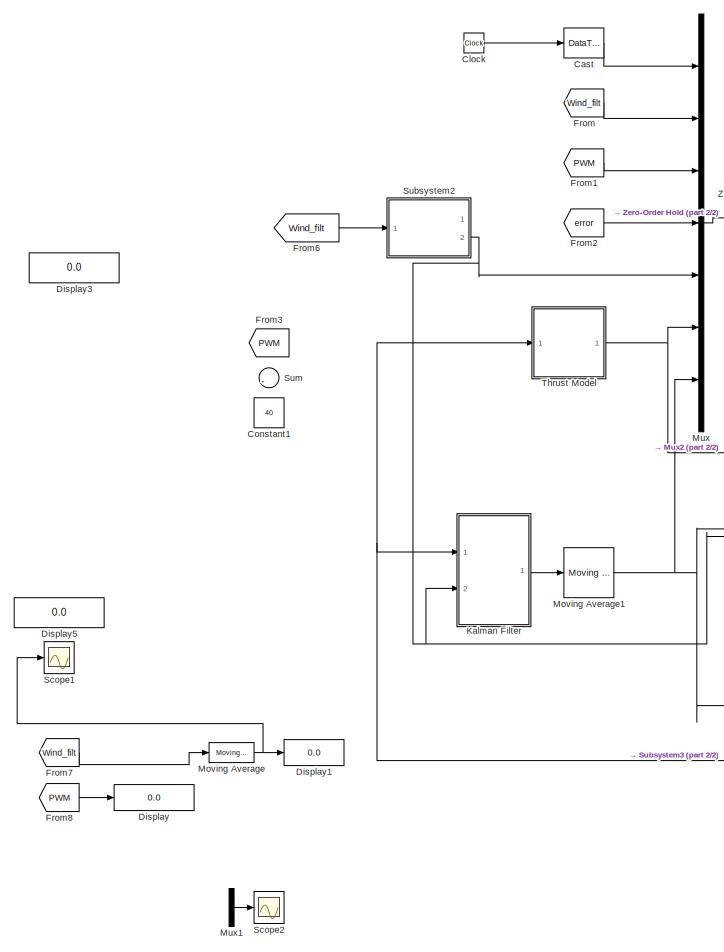
[diagram: root canvas - part 1/2, left side, full height]
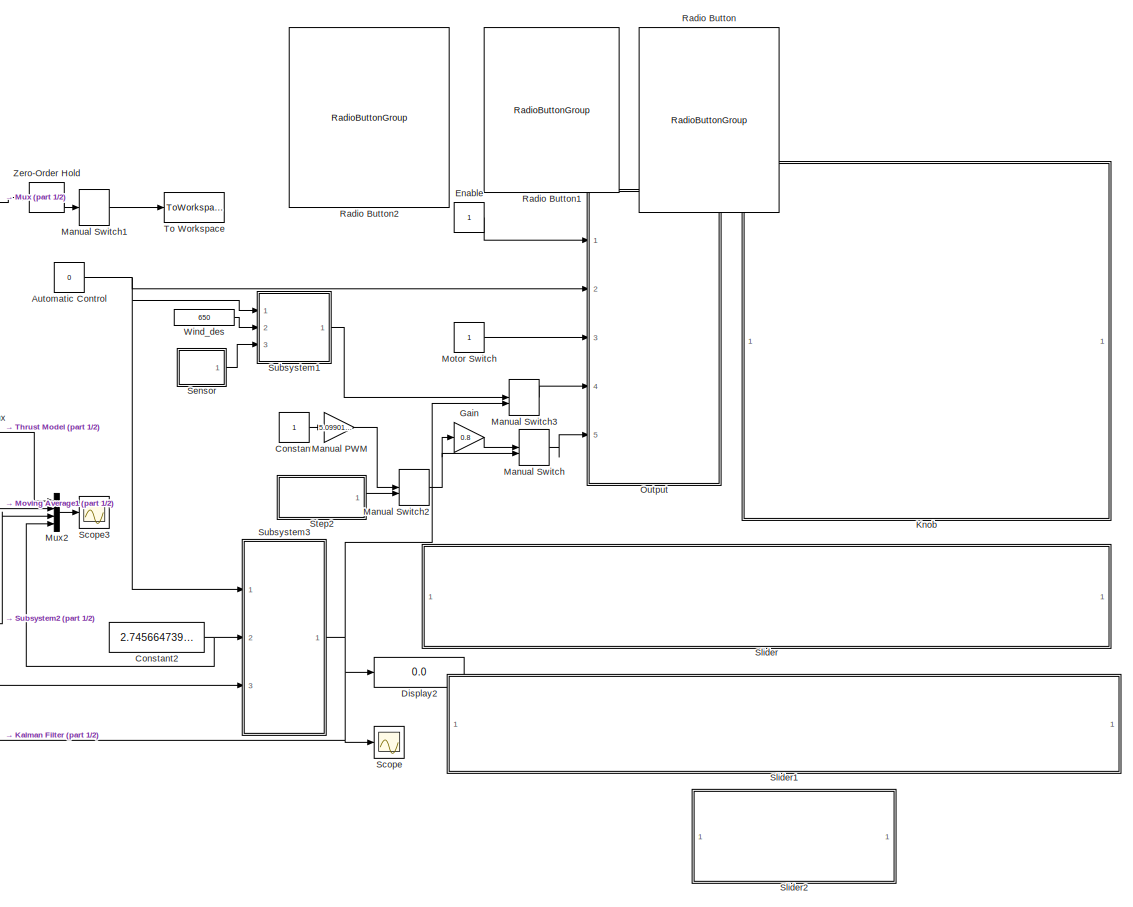
[diagram: root canvas - part 2/2, right side, full height]
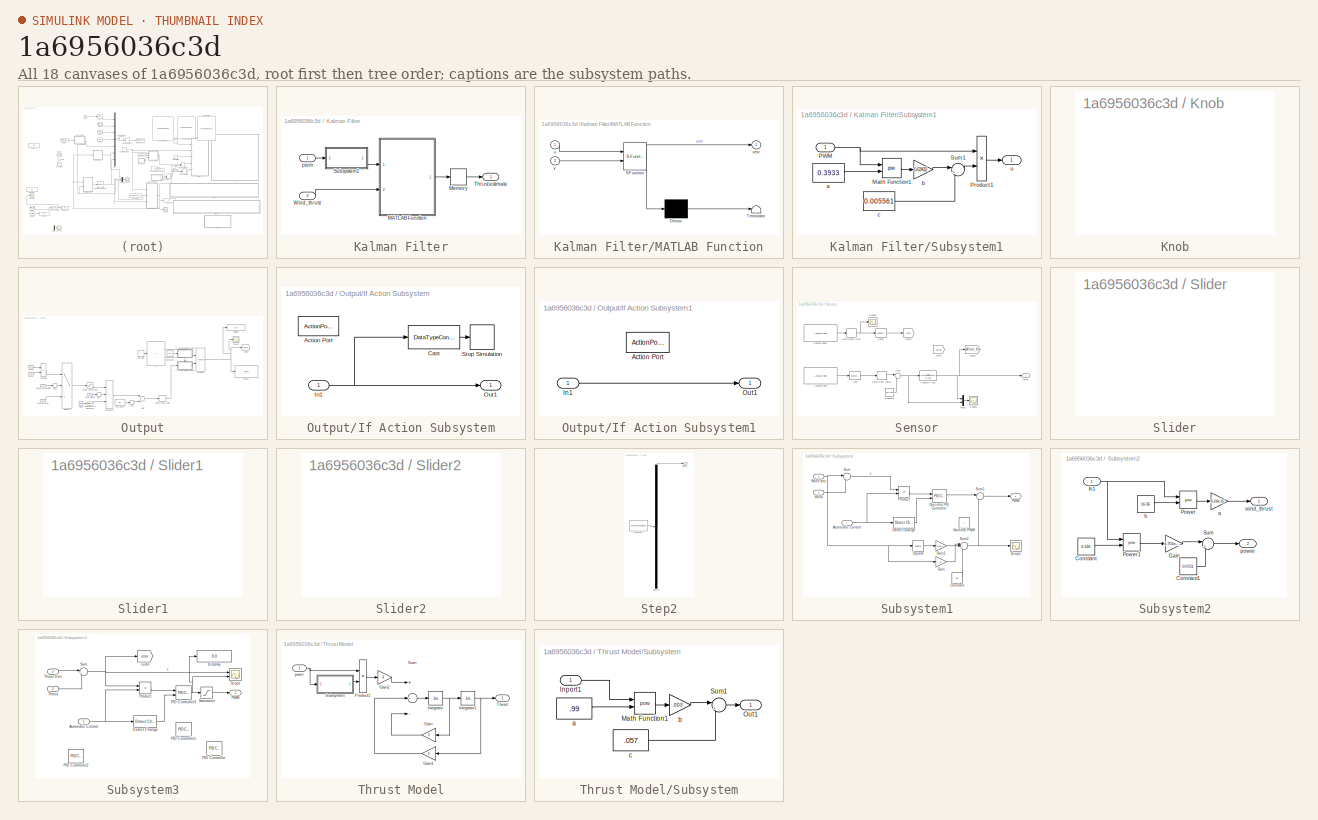
[diagram: thumbnail index - all 18 canvases of the model, root first then tree order]
MODEL slx_1a6956036c3d
KIND model
CONFIG AbsTol = auto
CONFIG EnableMultiTasking = on
CONFIG FixedStep = 0.01
CONFIG InitFcn = set_param('Final_test/Output/Run Sim','Value','1');\nset_param('Final_test/Motor Switch','Value','0');\nset_param('Final_test/Automatic Control','Value','0');\n%set_param('Final_test/Manual PWM','Gain','0');
CONFIG MaxStep = auto
CONFIG MinStep = auto
CONFIG RelTol = 1e-3
CONFIG SampleTimeConstraint = Unconstrained
CONFIG Solver = FixedStepAuto
CONFIG SolverName = FixedStepAuto
CONFIG StartTime = 0.0
CONFIG StopTime = inf
BLOCK [Constant] Automatic Control
  SampleTime = 0.01
  Value = 0
BLOCK [DataTypeConversion] Cast
  OutDataTypeStr = double
  RndMeth = Floor
  SaturateOnIntegerOverflow = off
BLOCK [Clock] Clock
BLOCK [Constant] Constant
  SampleTime = 0.01
BLOCK [Constant] Constant1
  Commented = on
  Value = 40
BLOCK [Constant] Constant2
  Value = 2.7456647398844
BLOCK [Display] Display
  Decimation = 1
  Ports = [1]
BLOCK [Display] Display1
  Decimation = 1
  Ports = [1]
BLOCK [Display] Display2
  Decimation = 1
  Ports = [1]
BLOCK [Display] Display3
  Decimation = 1
  Ports = [1]
BLOCK [Display] Display5
  Decimation = 1
  Ports = [1]
BLOCK [Constant] Enable
  SampleTime = 0.01
BLOCK [From] From
  GotoTag = Wind_filt
  TagVisibility = global
BLOCK [From] From1
  GotoTag = PWM
  TagVisibility = global
BLOCK [From] From2
  GotoTag = error
  TagVisibility = global
BLOCK [From] From3
  Commented = on
  GotoTag = PWM
  TagVisibility = global
BLOCK [From] From6
  GotoTag = Wind_filt
  TagVisibility = global
BLOCK [From] From7
  GotoTag = Wind_filt
  TagVisibility = global
BLOCK [From] From8
  GotoTag = PWM
  TagVisibility = global
BLOCK [Gain] Gain
  Gain = 0.8
  OutDataTypeStr = Inherit: Inherit via internal rule
  ParamDataTypeStr = Inherit: Inherit via internal rule
  SaturateOnIntegerOverflow = off
BLOCK [SubSystem] Kalman Filter
  Ports = [2, 1]
  RequestExecContextInheritance = off
BLOCK [SubSystem] Kalman Filter/MATLAB Function
  ErrorFcn = Stateflow.Translate.translate
  PermitHierarchicalResolution = ExplicitOnly
  Ports = [2, 1]
  RequestExecContextInheritance = off
  SFBlockType = MATLAB Function
  TreatAsAtomicUnit = on
BLOCK [Demux] Kalman Filter/MATLAB Function/ Demux 
  Outputs = 1
  Ports = [1, 1]
BLOCK [S-Function] Kalman Filter/MATLAB Function/ SFunction 
  EnableBusSupport = on
  FunctionName = sf_sfun
  PortCounts = [2 2]
  Ports = [2, 2]
  SFcnIsStateOwnerBlock = off
  SFunctionDeploymentMode = off
  Tag = Stateflow S-Function Final_test 2
BLOCK [Terminator] Kalman Filter/MATLAB Function/ Terminator 
BLOCK [Inport] Kalman Filter/MATLAB Function/u
  IconDisplay = Port number
BLOCK [Outport] Kalman Filter/MATLAB Function/xest
  IconDisplay = Port number
BLOCK [Inport] Kalman Filter/MATLAB Function/y
  IconDisplay = Port number
  Port = 2
BLOCK [Memory] Kalman Filter/Memory
BLOCK [SubSystem] Kalman Filter/Subsystem1
  Ports = [1, 1]
  RequestExecContextInheritance = off
BLOCK [Math] Kalman Filter/Subsystem1/Math Function1
  Operator = pow
  Ports = [2, 1]
BLOCK [Inport] Kalman Filter/Subsystem1/PWM
  IconDisplay = Port number
BLOCK [Product] Kalman Filter/Subsystem1/Product1
  InputSameDT = off
  OutDataTypeStr = Inherit: Inherit via internal rule
  Ports = [2, 1]
  RndMeth = Floor
  SaturateOnIntegerOverflow = off
BLOCK [Sum] Kalman Filter/Subsystem1/Sum1
  IconShape = round
  InputSameDT = off
  Inputs = |++
  OutDataTypeStr = Inherit: Inherit via internal rule
  Ports = [2, 1]
  SaturateOnIntegerOverflow = off
BLOCK [Constant] Kalman Filter/Subsystem1/a
  Value = 0.3933
BLOCK [Gain] Kalman Filter/Subsystem1/b
  Gain = 0.03432
  OutDataTypeStr = Inherit: Inherit via internal rule
  ParamDataTypeStr = Inherit: Inherit via internal rule
  SaturateOnIntegerOverflow = off
BLOCK [Constant] Kalman Filter/Subsystem1/c
  Value = 0.005561
BLOCK [Outport] Kalman Filter/Subsystem1/u
  IconDisplay = Port number
BLOCK [Outport] Kalman Filter/Thrust estimate
  IconDisplay = Port number
BLOCK [Inport] Kalman Filter/Wind_thrust
  IconDisplay = Port number
  Port = 2
BLOCK [Inport] Kalman Filter/pwm
  IconDisplay = Port number
BLOCK [SubSystem] Knob
  DialogController = hmiCreateDDGDialog
  IsWebBlock = on
  MaskHideContents = on
  Ports = []
  RequestExecContextInheritance = off
BLOCK [Gain] Manual PWM
  Gain = 5.0990117390951
  OutDataTypeStr = Inherit: Inherit via internal rule
  ParamDataTypeStr = Inherit: Inherit via internal rule
  SaturateOnIntegerOverflow = off
BLOCK [ManualSwitch] Manual Switch
  CurrentSetting = 0
BLOCK [ManualSwitch] Manual Switch1
BLOCK [ManualSwitch] Manual Switch2
  CurrentSetting = 0
BLOCK [ManualSwitch] Manual Switch3
  CurrentSetting = 0
BLOCK [Constant] Motor Switch
  SampleTime = 0.01
BLOCK [Reference] Moving Average  REF=dspstat3/Moving
Average
  Ports = [1, 1]
  SourceBlock = dspstat3/Moving\nAverage
  SourceProductBaseCode = DS
  SourceProductName = DSP System Toolbox
  SourceType = dsp.simulink.MovingAverage
BLOCK [Reference] Moving Average1  REF=dspstat3/Moving
Average
  Ports = [1, 1]
  SourceBlock = dspstat3/Moving\nAverage
  SourceProductBaseCode = DS
  SourceProductName = DSP System Toolbox
  SourceType = dsp.simulink.MovingAverage
BLOCK [Mux] Mux
  DisplayOption = bar
  Inputs = 7
  Ports = [7, 1]
BLOCK [Mux] Mux1
  DisplayOption = bar
  Inputs = 3
  Ports = [3, 1]
BLOCK [Mux] Mux2
  DisplayOption = bar
  Ports = [4, 1]
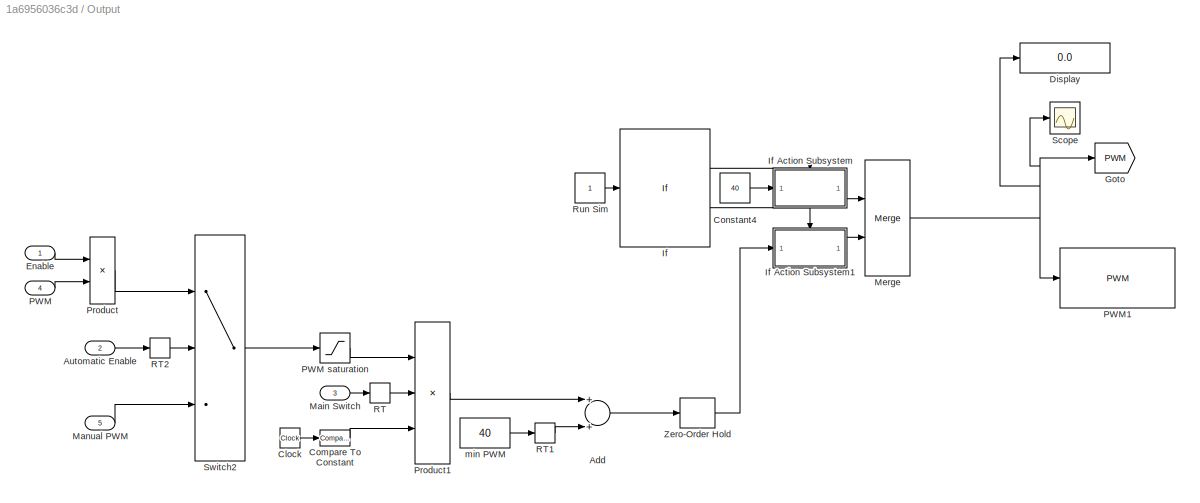
BLOCK [SubSystem] Output
  Ports = [5]
  RequestExecContextInheritance = off
BLOCK [Sum] Output/Add
  InputSameDT = off
  OutDataTypeStr = Inherit: Inherit via internal rule
  Ports = [2, 1]
  SaturateOnIntegerOverflow = off
BLOCK [Inport] Output/Automatic Enable
  IconDisplay = Port number
  Port = 2
BLOCK [Clock] Output/Clock
  Decimation = 2
BLOCK [Reference] Output/Compare To Constant  REF=simulink/Logic and Bit
Operations/Compare
To Constant
  Ports = [1, 1]
  SourceBlock = simulink/Logic and Bit\nOperations/Compare\nTo Constant
  SourceProductBaseCode = SL
  SourceProductName = Simulink
  SourceType = Compare To Constant
BLOCK [Constant] Output/Constant4
  SampleTime = 0.01
  Value = 40
BLOCK [Display] Output/Display
  Decimation = 1
  Ports = [1]
BLOCK [Inport] Output/Enable
  IconDisplay = Port number
BLOCK [Goto] Output/Goto
  GotoTag = PWM
  TagVisibility = global
BLOCK [If] Output/If
  IfExpression = u1 ~= 1
  Ports = [1, 2]
BLOCK [SubSystem] Output/If Action Subsystem
  Ports = [1, 1, 0, 0, 0, 0, 0, 1]
  RequestExecContextInheritance = off
  TreatAsAtomicUnit = on
BLOCK [ActionPort] Output/If Action Subsystem/Action Port
  ActionType = then
BLOCK [DataTypeConversion] Output/If Action Subsystem/Cast
  OutDataTypeStr = boolean
  RndMeth = Floor
  SaturateOnIntegerOverflow = off
BLOCK [Inport] Output/If Action Subsystem/In1
  IconDisplay = Port number
BLOCK [Outport] Output/If Action Subsystem/Out1
  IconDisplay = Port number
BLOCK [Stop] Output/If Action Subsystem/Stop Simulation
BLOCK [SubSystem] Output/If Action Subsystem1
  Ports = [1, 1, 0, 0, 0, 0, 0, 1]
  RequestExecContextInheritance = off
  TreatAsAtomicUnit = on
BLOCK [ActionPort] Output/If Action Subsystem1/Action Port
  ActionType = else
BLOCK [Inport] Output/If Action Subsystem1/In1
  IconDisplay = Port number
BLOCK [Outport] Output/If Action Subsystem1/Out1
  IconDisplay = Port number
BLOCK [Inport] Output/Main Switch
  IconDisplay = Port number
  Port = 3
BLOCK [Inport] Output/Manual PWM
  IconDisplay = Port number
  Port = 5
BLOCK [Merge] Output/Merge
  Ports = [2, 1]
BLOCK [Inport] Output/PWM
  IconDisplay = Port number
  Port = 4
BLOCK [Saturate] Output/PWM saturation
  InputPortMap = u0
  LowerLimit = 0
  Ports = [1, 1]
  UpperLimit = 40
BLOCK [Reference] Output/PWM1  REF=arduinolib/PWM
  Ports = [1]
  SourceBlock = arduinolib/PWM
  SourceProductBaseCode = ARDUINO
  SourceProductName = Simulink Support Package for Arduino Hardware
  SourceType = Arduino PWM
BLOCK [Product] Output/Product
  InputSameDT = off
  OutDataTypeStr = Inherit: Inherit via internal rule
  Ports = [2, 1]
  RndMeth = Floor
  SaturateOnIntegerOverflow = off
BLOCK [Product] Output/Product1
  InputSameDT = off
  Inputs = 3
  OutDataTypeStr = Inherit: Inherit via internal rule
  Ports = [3, 1]
  RndMeth = Floor
  SaturateOnIntegerOverflow = off
BLOCK [RateTransition] Output/RT
  OutPortSampleTime = 0.01
BLOCK [RateTransition] Output/RT1
  OutPortSampleTime = 0.01
BLOCK [RateTransition] Output/RT2
  OutPortSampleTime = 0.01
BLOCK [Constant] Output/Run Sim
  SampleTime = 0.01
BLOCK [Scope] Output/Scope
  Floating = off
  NumInputPorts = 1
  Ports = [1]
  ScopeSpecificationString = Simulink.scopes.TimeScopeBlockCfg('CurrentConfiguration', extmgr.ConfigurationSet(extmgr.Configuration('Core','General UI',true),extmgr.Configuration('Core','Source UI',true),extmgr.Configuration('Sources','WiredSimulink',true,'DataLoggingVariableName','ScopeData2'),extmgr.Configuration('Visuals','Time Domain',true),extmgr.Configuration('Tools','Plot Navigation',true),extmgr.Configuration('Tools',...<+40ch>
BLOCK [Switch] Output/Switch2
  Criteria = u2 > Threshold
  InputSameDT = off
  SaturateOnIntegerOverflow = off
BLOCK [ZeroOrderHold] Output/Zero-Order Hold
  SampleTime = 0.01
BLOCK [Constant] Output/min PWM
  SampleTime = 0.01
  Value = 40
BLOCK [RadioButtonGroup] Radio Button
  ButtonGroupName = SIM STATUS
  SelectedLabel = ON
  WebBlockId = 124
BLOCK [RadioButtonGroup] Radio Button1
  ButtonGroupName = SIM STATUS
  SelectedLabel = OFF
  WebBlockId = 141
BLOCK [RadioButtonGroup] Radio Button2
  ButtonGroupName = SIM STATUS
  SelectedLabel = ON
  WebBlockId = 144
BLOCK [Scope] Scope
  Floating = off
  NumInputPorts = 1
  Ports = [1]
  ScopeSpecificationString = Simulink.scopes.TimeScopeBlockCfg('CurrentConfiguration', extmgr.ConfigurationSet(extmgr.Configuration('Core','General UI',true),extmgr.Configuration('Core','Source UI',true),extmgr.Configuration('Sources','WiredSimulink',true,'DataLoggingVariableName','ScopeData1'),extmgr.Configuration('Visuals','Time Domain',true),extmgr.Configuration('Tools','Plot Navigation',true),extmgr.Configuration('Tools',...<+40ch>
BLOCK [Scope] Scope1
  Floating = off
  NumInputPorts = 1
  Ports = [1]
  ScopeSpecificationString = Simulink.scopes.TimeScopeBlockCfg('CurrentConfiguration', extmgr.ConfigurationSet(extmgr.Configuration('Core','General UI',true),extmgr.Configuration('Core','Source UI',true),extmgr.Configuration('Sources','WiredSimulink',true,'DataLoggingVariableName','ScopeData1'),extmgr.Configuration('Visuals','Time Domain',true,'SerializedDisplays',{struct('MinYLimReal','-31.25054','MaxYLimReal','281.25484','Y...<+1484ch>
BLOCK [Scope] Scope2
  Floating = off
  NumInputPorts = 1
  Ports = [1]
  ScopeSpecificationString = Simulink.scopes.TimeScopeBlockCfg('CurrentConfiguration', extmgr.ConfigurationSet(extmgr.Configuration('Core','General UI',true),extmgr.Configuration('Core','Source UI',true),extmgr.Configuration('Sources','WiredSimulink',true,'DataLoggingVariableName','ScopeData3'),extmgr.Configuration('Visuals','Time Domain',true,'SerializedDisplays',{struct('MinYLimReal','-1.00000','MaxYLimReal','1.00000','YLab...<+1446ch>
BLOCK [Scope] Scope3
  Floating = off
  NumInputPorts = 1
  Ports = [1]
  ScopeSpecificationString = Simulink.scopes.TimeScopeBlockCfg('CurrentConfiguration', extmgr.ConfigurationSet(extmgr.Configuration('Core','General UI',true),extmgr.Configuration('Core','Source UI',true),extmgr.Configuration('Sources','WiredSimulink',true,'DataLoggingVariableName','ScopeData4'),extmgr.Configuration('Visuals','Time Domain',true,'SerializedDisplays',{struct('MinYLimReal','1.21978','MaxYLimReal','3.14437','YLabe...<+1509ch>
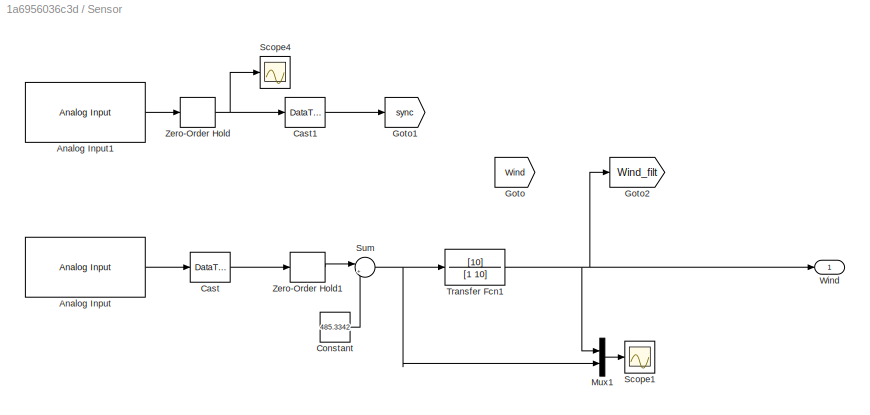
BLOCK [SubSystem] Sensor
  Ports = [0, 1]
  RequestExecContextInheritance = off
BLOCK [Reference] Sensor/Analog Input  REF=arduinolib/Analog Input
  Ports = [0, 1]
  SourceBlock = arduinolib/Analog Input
  SourceProductBaseCode = ARDUINO
  SourceProductName = Simulink Support Package for Arduino Hardware
  SourceType = Arduino Analog Input
BLOCK [Reference] Sensor/Analog Input1  REF=arduinolib/Analog Input
  Commented = on
  Ports = [0, 1]
  SourceBlock = arduinolib/Analog Input
  SourceProductBaseCode = ARDUINO
  SourceProductName = Simulink Support Package for Arduino Hardware
  SourceType = Arduino Analog Input
BLOCK [DataTypeConversion] Sensor/Cast
  OutDataTypeStr = double
  RndMeth = Floor
  SaturateOnIntegerOverflow = off
BLOCK [DataTypeConversion] Sensor/Cast1
  Commented = on
  OutDataTypeStr = double
  RndMeth = Floor
  SaturateOnIntegerOverflow = off
BLOCK [Constant] Sensor/Constant
  Value = 485.3342
BLOCK [Goto] Sensor/Goto
  GotoTag = Wind
  TagVisibility = global
BLOCK [Goto] Sensor/Goto1
  Commented = on
  GotoTag = sync
  TagVisibility = global
BLOCK [Goto] Sensor/Goto2
  GotoTag = Wind_filt
  TagVisibility = global
BLOCK [Mux] Sensor/Mux1
  DisplayOption = bar
  Inputs = 2
  Ports = [2, 1]
BLOCK [Scope] Sensor/Scope1
  Floating = off
  NumInputPorts = 1
  Ports = [1]
  ScopeSpecificationString = Simulink.scopes.TimeScopeBlockCfg('CurrentConfiguration', extmgr.ConfigurationSet(extmgr.Configuration('Core','General UI',true),extmgr.Configuration('Core','Source UI',true),extmgr.Configuration('Sources','WiredSimulink',true,'DataLoggingVariableName','ScopeData1'),extmgr.Configuration('Visuals','Time Domain',true,'SerializedDisplays',{struct('MinYLimReal','590.625','MaxYLimReal','774.375','YLabe...<+1444ch>
BLOCK [Scope] Sensor/Scope4
  Commented = on
  Floating = off
  NumInputPorts = 1
  Ports = [1]
  ScopeSpecificationString = Simulink.scopes.TimeScopeBlockCfg('CurrentConfiguration', extmgr.ConfigurationSet(extmgr.Configuration('Core','General UI',true),extmgr.Configuration('Core','Source UI',true),extmgr.Configuration('Sources','WiredSimulink',true,'DataLoggingVariableName','ScopeData4','DataLogging',true),extmgr.Configuration('Visuals','Time Domain',true,'SerializedDisplays',{struct('MinYLimReal','480.00000','MaxYLimR...<+1526ch>
BLOCK [Sum] Sensor/Sum
  IconShape = round
  InputSameDT = off
  Inputs = |+-
  OutDataTypeStr = Inherit: Inherit via internal rule
  Ports = [2, 1]
  SaturateOnIntegerOverflow = off
BLOCK [TransferFcn] Sensor/Transfer Fcn1
  Denominator = [1 10]
  Numerator = [10]
BLOCK [Outport] Sensor/Wind
  IconDisplay = Port number
BLOCK [ZeroOrderHold] Sensor/Zero-Order Hold
  Commented = on
  SampleTime = 0.01
BLOCK [ZeroOrderHold] Sensor/Zero-Order Hold1
  SampleTime = 0.01
BLOCK [SubSystem] Slider
  DialogController = hmiCreateDDGDialog
  IsWebBlock = on
  MaskHideContents = on
  Ports = []
  RequestExecContextInheritance = off
BLOCK [SubSystem] Slider1
  DialogController = hmiCreateDDGDialog
  IsWebBlock = on
  MaskHideContents = on
  Ports = []
  RequestExecContextInheritance = off
BLOCK [SubSystem] Slider2
  DialogController = hmiCreateDDGDialog
  IsWebBlock = on
  MaskHideContents = on
  Ports = []
  RequestExecContextInheritance = off
BLOCK [SubSystem] Step2
  ClipboardFcn = sigbuilder_block('clipboard');
  CloseFcn = sigbuilder_block('close');
  ContinueFcn = sigbuilder_block('continue');
  CopyFcn = sigbuilder_block('copy');
  DeleteFcn = sigbuilder_block('delete');
  LoadFcn = sigbuilder_block('load');
  MaskHideContents = on
  ModelCloseFcn = sigbuilder_block('modelClose');
  NameChangeFcn = sigbuilder_block('namechange');
  OpenFcn = sigbuilder_block('open',[56.25 0 1376.25 684.75 ]);
  PauseFcn = sigbuilder_block('pause');
  Ports = [0, 1]
  PreSaveFcn = sigbuilder_block('preSave');
  RequestExecContextInheritance = off
  StartFcn = sigbuilder_block('start');
  StopFcn = sigbuilder_block('stop');
  Tag = STV Subsys
BLOCK [Demux] Step2/Demux
  Outputs = 1
  Ports = [1, 1]
  Tag = STV Demux
BLOCK [FromWorkspace] Step2/FromWs
  SampleTime = 0
  Tag = STV FromWs
  VariableName = tuvar
  ZeroCross = on
BLOCK [Outport] Step2/Signal 1
  IconDisplay = Port number
  Tag = STV Outport
BLOCK [SubSystem] Subsystem1
  Ports = [3, 1]
  RequestExecContextInheritance = off
BLOCK [Inport] Subsystem1/Automatic Control
  IconDisplay = Port number
BLOCK [Constant] Subsystem1/Constant
  Value = 170
BLOCK [Reference] Subsystem1/Detect Change  REF=simulink/Logic and Bit
Operations/Detect
Change
  Ports = [1, 1]
  SourceBlock = simulink/Logic and Bit\nOperations/Detect\nChange
  SourceProductBaseCode = SL
  SourceProductName = Simulink
  SourceType = Detect Change
BLOCK [Reference] Subsystem1/Discrete PID Controller  REF=simulink/Continuous/PID Controller
  Ports = [2, 1]
  SourceBlock = simulink/Continuous/PID Controller
  SourceProductBaseCode = SL
  SourceProductName = Simulink
  SourceType = PID 1dof
BLOCK [Gain] Subsystem1/Gain
  Gain = -.61
  OutDataTypeStr = Inherit: Inherit via internal rule
  ParamDataTypeStr = Inherit: Inherit via internal rule
  SaturateOnIntegerOverflow = off
BLOCK [Gain] Subsystem1/Gain1
  Gain = 5.6e-4
  OutDataTypeStr = Inherit: Inherit via internal rule
  ParamDataTypeStr = Inherit: Inherit via internal rule
  SaturateOnIntegerOverflow = off
BLOCK [Constant] Subsystem1/Nominal PWM
  Commented = on
  SampleTime = 0.01
  Value = 7
BLOCK [Outport] Subsystem1/PWM
  IconDisplay = Port number
BLOCK [Product] Subsystem1/Product
  InputSameDT = off
  OutDataTypeStr = Inherit: Inherit via internal rule
  Ports = [2, 1]
  RndMeth = Floor
  SaturateOnIntegerOverflow = off
BLOCK [Scope] Subsystem1/Scope
  Floating = off
  NumInputPorts = 1
  Ports = [1]
  ScopeSpecificationString = Simulink.scopes.TimeScopeBlockCfg('CurrentConfiguration', extmgr.ConfigurationSet(extmgr.Configuration('Core','General UI',true),extmgr.Configuration('Core','Source UI',true),extmgr.Configuration('Sources','WiredSimulink',true,'DataLoggingVariableName','ScopeData1'),extmgr.Configuration('Visuals','Time Domain',true,'SerializedDisplays',{struct('MinYLimReal','10.06778','MaxYLimReal','10.39002','YLa...<+1398ch>
BLOCK [Math] Subsystem1/Square
  Operator = square
  Ports = [1, 1]
BLOCK [Sum] Subsystem1/Sum
  IconShape = round
  InputSameDT = off
  Inputs = |+-
  OutDataTypeStr = Inherit: Inherit via internal rule
  Ports = [2, 1]
  SaturateOnIntegerOverflow = off
BLOCK [Sum] Subsystem1/Sum1
  IconShape = round
  InputSameDT = off
  Inputs = |++
  OutDataTypeStr = Inherit: Inherit via internal rule
  Ports = [2, 1]
  SaturateOnIntegerOverflow = off
BLOCK [Sum] Subsystem1/Sum2
  IconShape = round
  InputSameDT = off
  Inputs = |+++
  OutDataTypeStr = Inherit: Inherit via internal rule
  Ports = [3, 1]
  SaturateOnIntegerOverflow = off
BLOCK [Inport] Subsystem1/Wind
  IconDisplay = Port number
  Port = 3
BLOCK [Inport] Subsystem1/Wind des
  IconDisplay = Port number
  Port = 2
BLOCK [SubSystem] Subsystem2
  Ports = [1, 2]
  RequestExecContextInheritance = off
BLOCK [Constant] Subsystem2/Constant
  Value = 6.146
BLOCK [Constant] Subsystem2/Constant1
  Value = 0.0731
BLOCK [Gain] Subsystem2/Gain
  Gain = 4.701e-15
  OutDataTypeStr = Inherit: Inherit via internal rule
  ParamDataTypeStr = Inherit: Inherit via internal rule
  SaturateOnIntegerOverflow = off
BLOCK [Inport] Subsystem2/In1
  IconDisplay = Port number
BLOCK [Math] Subsystem2/Power
  Operator = pow
  Ports = [2, 1]
BLOCK [Math] Subsystem2/Power1
  Operator = pow
  Ports = [2, 1]
BLOCK [Sum] Subsystem2/Sum
  IconShape = round
  InputSameDT = off
  Inputs = |++
  OutDataTypeStr = Inherit: Inherit via internal rule
  Ports = [2, 1]
  SaturateOnIntegerOverflow = off
BLOCK [Gain] Subsystem2/a
  Gain = 4.24e-47
  OutDataTypeStr = Inherit: Inherit via internal rule
  ParamDataTypeStr = Inherit: Inherit via internal rule
  SaturateOnIntegerOverflow = off
BLOCK [Constant] Subsystem2/b
  Value = 16.36
BLOCK [Outport] Subsystem2/power 
  IconDisplay = Port number
  Port = 2
BLOCK [Outport] Subsystem2/wind_thrust 
  IconDisplay = Port number
BLOCK [SubSystem] Subsystem3
  Ports = [3, 1]
  RequestExecContextInheritance = off
BLOCK [Inport] Subsystem3/Automatic Control
  IconDisplay = Port number
BLOCK [Reference] Subsystem3/Detect Change  REF=simulink/Logic and Bit
Operations/Detect
Change
  Ports = [1, 1]
  SourceBlock = simulink/Logic and Bit\nOperations/Detect\nChange
  SourceProductBaseCode = SL
  SourceProductName = Simulink
  SourceType = Detect Change
BLOCK [Display] Subsystem3/Display
  Decimation = 1
  Ports = [1]
BLOCK [Goto] Subsystem3/Goto
  GotoTag = error
  TagVisibility = global
BLOCK [Reference] Subsystem3/PID Controller  REF=simulink/Continuous/PID Controller
  Ports = [2, 1]
  SourceBlock = simulink/Continuous/PID Controller
  SourceProductBaseCode = SL
  SourceProductName = Simulink
  SourceType = PID 1dof
BLOCK [Reference] Subsystem3/PID Controller1  REF=simulink/Continuous/PID Controller
  Ports = [2, 1]
  SourceBlock = simulink/Continuous/PID Controller
  SourceProductBaseCode = SL
  SourceProductName = Simulink
  SourceType = PID 1dof
BLOCK [Reference] Subsystem3/PID Controller2  REF=simulink/Continuous/PID Controller
  Ports = [2, 1]
  SourceBlock = simulink/Continuous/PID Controller
  SourceProductBaseCode = SL
  SourceProductName = Simulink
  SourceType = PID 1dof
BLOCK [Reference] Subsystem3/PID Controller3  REF=simulink/Continuous/PID Controller
  Ports = [2, 1]
  SourceBlock = simulink/Continuous/PID Controller
  SourceProductBaseCode = SL
  SourceProductName = Simulink
  SourceType = PID 1dof
BLOCK [Outport] Subsystem3/PWM 
  IconDisplay = Port number
BLOCK [Product] Subsystem3/Product
  InputSameDT = off
  OutDataTypeStr = Inherit: Inherit via internal rule
  Ports = [2, 1]
  RndMeth = Floor
  SaturateOnIntegerOverflow = off
BLOCK [Saturate] Subsystem3/Saturation
  InputPortMap = u0
  LowerLimit = 0
  Ports = [1, 1]
  UpperLimit = 40
BLOCK [Scope] Subsystem3/Scope
  Floating = off
  NumInputPorts = 2
  Ports = [2]
  ScopeSpecificationString = Simulink.scopes.TimeScopeBlockCfg('CurrentConfiguration', extmgr.ConfigurationSet(extmgr.Configuration('Core','General UI',true),extmgr.Configuration('Core','Source UI',true),extmgr.Configuration('Sources','WiredSimulink',true,'DataLoggingVariableName','ScopeData1'),extmgr.Configuration('Visuals','Time Domain',true,'SerializedDisplays',{struct('MinYLimReal','-0.15643','MaxYLimReal','0.6769','YLabe...<+2019ch>
BLOCK [Sum] Subsystem3/Sum
  IconShape = round
  InputSameDT = off
  Inputs = |+-
  OutDataTypeStr = Inherit: Inherit via internal rule
  Ports = [2, 1]
  SaturateOnIntegerOverflow = off
BLOCK [Inport] Subsystem3/Thrust
  IconDisplay = Port number
  Port = 3
BLOCK [Inport] Subsystem3/Thrust Des
  IconDisplay = Port number
  Port = 2
BLOCK [Sum] Sum
  Commented = on
  IconShape = round
  InputSameDT = off
  Inputs = |+-
  OutDataTypeStr = Inherit: Inherit via internal rule
  Ports = [2, 1]
  SaturateOnIntegerOverflow = off
BLOCK [SubSystem] Thrust Model
  Ports = [1, 1]
  RequestExecContextInheritance = off
BLOCK [Gain] Thrust Model/Gain
  Gain = 3
  OutDataTypeStr = Inherit: Inherit via internal rule
  ParamDataTypeStr = Inherit: Inherit via internal rule
  SaturateOnIntegerOverflow = off
BLOCK [Gain] Thrust Model/Gain1
  Gain = 4
  OutDataTypeStr = Inherit: Inherit via internal rule
  ParamDataTypeStr = Inherit: Inherit via internal rule
  SaturateOnIntegerOverflow = off
BLOCK [Gain] Thrust Model/Gain2
  Gain = 4
  OutDataTypeStr = Inherit: Inherit via internal rule
  ParamDataTypeStr = Inherit: Inherit via internal rule
  SaturateOnIntegerOverflow = off
BLOCK [Integrator] Thrust Model/Integrator
  Ports = [1, 1]
BLOCK [Integrator] Thrust Model/Integrator1
  Ports = [1, 1]
BLOCK [Product] Thrust Model/Product1
  InputSameDT = off
  OutDataTypeStr = Inherit: Inherit via internal rule
  Ports = [2, 1]
  RndMeth = Floor
  SaturateOnIntegerOverflow = off
BLOCK [SubSystem] Thrust Model/Subsystem
  Ports = [1, 1]
  RequestExecContextInheritance = off
BLOCK [Inport] Thrust Model/Subsystem/Inport1
  IconDisplay = Port number
BLOCK [Math] Thrust Model/Subsystem/Math Function1
  Operator = pow
  Ports = [2, 1]
BLOCK [Outport] Thrust Model/Subsystem/Out1
  IconDisplay = Port number
BLOCK [Sum] Thrust Model/Subsystem/Sum1
  IconShape = round
  InputSameDT = off
  Inputs = |++
  OutDataTypeStr = Inherit: Inherit via internal rule
  Ports = [2, 1]
  SaturateOnIntegerOverflow = off
BLOCK [Constant] Thrust Model/Subsystem/a
  Value = .99
BLOCK [Gain] Thrust Model/Subsystem/b
  Gain = .003
  OutDataTypeStr = Inherit: Inherit via internal rule
  ParamDataTypeStr = Inherit: Inherit via internal rule
  SaturateOnIntegerOverflow = off
BLOCK [Constant] Thrust Model/Subsystem/c
  Value = .057
BLOCK [Sum] Thrust Model/Sum
  InputSameDT = off
  Inputs = +--
  OutDataTypeStr = Inherit: Inherit via internal rule
  Ports = [3, 1]
  SaturateOnIntegerOverflow = off
BLOCK [Outport] Thrust Model/Thrust
  IconDisplay = Port number
BLOCK [Inport] Thrust Model/pwm
  IconDisplay = Port number
BLOCK [ToWorkspace] To Workspace
  FixptAsFi = on
  MaxDataPoints = inf
  Ports = [1]
  SampleTime = -1
  Save2DSignal = 2-D array (concatenate along first dimension)
  VariableName = Data
BLOCK [Constant] Wind_des
  SampleTime = 0.01
  Value = 650
BLOCK [ZeroOrderHold] Zero-Order Hold
  SampleTime = 0.01
NET Automatic Control:1 -> Output:2, Subsystem1:1, Subsystem3:1
LINE Cast:1 -> Mux:1
LINE Clock:1 -> Cast:1
NET Constant2:1 -> Mux2:4, Subsystem3:2
LINE Constant:1 -> Manual PWM:1
LINE Enable:1 -> Output:1
LINE From1:1 -> Mux:3
LINE From2:1 -> Mux:4
LINE From6:1 -> Subsystem2:1
LINE From7:1 -> Moving Average:1
LINE From8:1 -> Display:1
LINE From:1 -> Mux:2
LINE Gain:1 -> Manual Switch:1
LINE Kalman Filter/MATLAB Function:1 -> Kalman Filter/Memory:1
LINE Kalman Filter/Memory:1 -> Kalman Filter/Thrust estimate:1
LINE Kalman Filter/Subsystem1/Math Function1:1 -> Kalman Filter/Subsystem1/b:1
NET Kalman Filter/Subsystem1/PWM:1 -> Kalman Filter/Subsystem1/Math Function1:1, Kalman Filter/Subsystem1/Product1:1
LINE Kalman Filter/Subsystem1/Product1:1 -> Kalman Filter/Subsystem1/u:1
LINE Kalman Filter/Subsystem1/Sum1:1 -> Kalman Filter/Subsystem1/Product1:2
LINE Kalman Filter/Subsystem1/a:1 -> Kalman Filter/Subsystem1/Math Function1:2
LINE Kalman Filter/Subsystem1/b:1 -> Kalman Filter/Subsystem1/Sum1:1
LINE Kalman Filter/Subsystem1/c:1 -> Kalman Filter/Subsystem1/Sum1:2
LINE Kalman Filter/Subsystem1:1 -> Kalman Filter/MATLAB Function:1
LINE Kalman Filter/Wind_thrust:1 -> Kalman Filter/MATLAB Function:2
LINE Kalman Filter/pwm:1 -> Kalman Filter/Subsystem1:1
LINE Kalman Filter:1 -> Moving Average1:1
LINE Manual PWM:1 -> Manual Switch2:1
LINE Manual Switch1:1 -> To Workspace:1
NET Manual Switch2:1 -> Gain:1, Manual Switch:2
LINE Manual Switch3:1 -> Output:4
LINE Manual Switch:1 -> Output:5
LINE Motor Switch:1 -> Output:3
NET Moving Average1:1 -> Mux2:2, Mux:7, Subsystem3:3
NET Moving Average:1 -> Display1:1, Scope1:1
LINE Mux1:1 -> Scope2:1
LINE Mux2:1 -> Scope3:1
LINE Mux:1 -> Zero-Order Hold:1
LINE Output/Add:1 -> Output/Zero-Order Hold:1
LINE Output/Automatic Enable:1 -> Output/RT2:1
LINE Output/Clock:1 -> Output/Compare To Constant:1
LINE Output/Compare To Constant:1 -> Output/Product1:3
LINE Output/Constant4:1 -> Output/If Action Subsystem:1
LINE Output/Enable:1 -> Output/Product:1
LINE Output/If Action Subsystem/Cast:1 -> Output/If Action Subsystem/Stop Simulation:1
NET Output/If Action Subsystem/In1:1 -> Output/If Action Subsystem/Cast:1, Output/If Action Subsystem/Out1:1
LINE Output/If Action Subsystem1/In1:1 -> Output/If Action Subsystem1/Out1:1
LINE Output/If Action Subsystem1:1 -> Output/Merge:2
LINE Output/If Action Subsystem:1 -> Output/Merge:1
LINE Output/If:1 -> Output/If Action Subsystem:ifaction
LINE Output/If:2 -> Output/If Action Subsystem1:ifaction
LINE Output/Main Switch:1 -> Output/RT:1
LINE Output/Manual PWM:1 -> Output/Switch2:3
NET Output/Merge:1 -> Output/Display:1, Output/Goto:1, Output/PWM1:1, Output/Scope:1
LINE Output/PWM saturation:1 -> Output/Product1:1
LINE Output/PWM:1 -> Output/Product:2
LINE Output/Product1:1 -> Output/Add:1
LINE Output/Product:1 -> Output/Switch2:1
LINE Output/RT1:1 -> Output/Add:2
LINE Output/RT2:1 -> Output/Switch2:2
LINE Output/RT:1 -> Output/Product1:2
LINE Output/Run Sim:1 -> Output/If:1
LINE Output/Switch2:1 -> Output/PWM saturation:1
LINE Output/Zero-Order Hold:1 -> Output/If Action Subsystem1:1
LINE Output/min PWM:1 -> Output/RT1:1
LINE Sensor/Analog Input1:1 -> Sensor/Zero-Order Hold:1
LINE Sensor/Analog Input:1 -> Sensor/Cast:1
LINE Sensor/Cast1:1 -> Sensor/Goto1:1
LINE Sensor/Cast:1 -> Sensor/Zero-Order Hold1:1
LINE Sensor/Constant:1 -> Sensor/Sum:2
LINE Sensor/Mux1:1 -> Sensor/Scope1:1
NET Sensor/Sum:1 -> Sensor/Mux1:2, Sensor/Transfer Fcn1:1
NET Sensor/Transfer Fcn1:1 -> Sensor/Goto2:1, Sensor/Mux1:1, Sensor/Wind:1
LINE Sensor/Zero-Order Hold1:1 -> Sensor/Sum:1
NET Sensor/Zero-Order Hold:1 -> Sensor/Cast1:1, Sensor/Scope4:1
LINE Sensor:1 -> Subsystem1:3
LINE Step2:1 -> Manual Switch2:2
NET Subsystem1/Automatic Control:1 -> Subsystem1/Detect Change:1, Subsystem1/Product:2
LINE Subsystem1/Constant:1 -> Subsystem1/Sum2:3
LINE Subsystem1/Detect Change:1 -> Subsystem1/Discrete PID Controller:2
LINE Subsystem1/Discrete PID Controller:1 -> Subsystem1/Sum1:1
LINE Subsystem1/Gain1:1 -> Subsystem1/Sum2:1
LINE Subsystem1/Gain:1 -> Subsystem1/Sum2:2
LINE Subsystem1/Product:1 -> Subsystem1/Discrete PID Controller:1
LINE Subsystem1/Square:1 -> Subsystem1/Gain1:1
LINE Subsystem1/Sum1:1 -> Subsystem1/PWM:1
NET Subsystem1/Sum2:1 -> Subsystem1/Scope:1, Subsystem1/Sum1:2
LINE Subsystem1/Sum:1 -> Subsystem1/Product:1
NET Subsystem1/Wind des:1 -> Subsystem1/Gain:1, Subsystem1/Square:1, Subsystem1/Sum:1
LINE Subsystem1/Wind:1 -> Subsystem1/Sum:2
LINE Subsystem1:1 -> Manual Switch3:1
LINE Subsystem2/Constant1:1 -> Subsystem2/Sum:2
LINE Subsystem2/Constant:1 -> Subsystem2/Power1:2
LINE Subsystem2/Gain:1 -> Subsystem2/Sum:1
NET Subsystem2/In1:1 -> Subsystem2/Power1:1, Subsystem2/Power:1
LINE Subsystem2/Power1:1 -> Subsystem2/Gain:1
LINE Subsystem2/Power:1 -> Subsystem2/a:1
LINE Subsystem2/Sum:1 -> Subsystem2/power :1
LINE Subsystem2/a:1 -> Subsystem2/wind_thrust :1
LINE Subsystem2/b:1 -> Subsystem2/Power:2
NET Subsystem2:2 -> Kalman Filter:2, Mux2:3, Mux:5
NET Subsystem3/Automatic Control:1 -> Subsystem3/Detect Change:1, Subsystem3/Product:2
LINE Subsystem3/Detect Change:1 -> Subsystem3/PID Controller3:2
NET Subsystem3/PID Controller3:1 -> Subsystem3/Display:1, Subsystem3/Saturation:1, Subsystem3/Scope:2
LINE Subsystem3/Product:1 -> Subsystem3/PID Controller3:1
LINE Subsystem3/Saturation:1 -> Subsystem3/PWM :1
NET Subsystem3/Sum:1 -> Subsystem3/Goto:1, Subsystem3/Product:1, Subsystem3/Scope:1
LINE Subsystem3/Thrust Des:1 -> Subsystem3/Sum:1
LINE Subsystem3/Thrust:1 -> Subsystem3/Sum:2
NET Subsystem3:1 -> Display2:1, Kalman Filter:1, Manual Switch3:2, Scope:1, Thrust Model:1
LINE Thrust Model/Gain1:1 -> Thrust Model/Sum:2
LINE Thrust Model/Gain2:1 -> Thrust Model/Sum:1
LINE Thrust Model/Gain:1 -> Thrust Model/Sum:3
NET Thrust Model/Integrator1:1 -> Thrust Model/Gain1:1, Thrust Model/Thrust:1
NET Thrust Model/Integrator:1 -> Thrust Model/Gain:1, Thrust Model/Integrator1:1
LINE Thrust Model/Product1:1 -> Thrust Model/Gain2:1
LINE Thrust Model/Subsystem/Inport1:1 -> Thrust Model/Subsystem/Math Function1:1
LINE Thrust Model/Subsystem/Math Function1:1 -> Thrust Model/Subsystem/b:1
LINE Thrust Model/Subsystem/Sum1:1 -> Thrust Model/Subsystem/Out1:1
LINE Thrust Model/Subsystem/a:1 -> Thrust Model/Subsystem/Math Function1:2
LINE Thrust Model/Subsystem/b:1 -> Thrust Model/Subsystem/Sum1:1
LINE Thrust Model/Subsystem/c:1 -> Thrust Model/Subsystem/Sum1:2
LINE Thrust Model/Subsystem:1 -> Thrust Model/Product1:2
LINE Thrust Model/Sum:1 -> Thrust Model/Integrator:1
NET Thrust Model/pwm:1 -> Thrust Model/Product1:1, Thrust Model/Subsystem:1
NET Thrust Model:1 -> Mux2:1, Mux:6
LINE Wind_des:1 -> Subsystem1:2
LINE Zero-Order Hold:1 -> Manual Switch1:1
note: NET lines group one-source signal fan-out (src -> all destinations, sorted); 1:1 wires keep LINE
CHART Kalman Filter/MATLAB Function states=1 transitions=1
  STATE_LABEL 'eML_blk_kernel()'
  STATE_LABEL "SCRIPT:\nfunction xest  = fcn(u, y)\npersistent P xh\nif isempty(P)\n    P = eye(2);\n    xh = zeros(2,1);\nend\n% A = [0 1; -4 -3];\n% B = [0; 4];\n% C = [1 0];\n\nAd = [0.9998  0.009851; -0.0394    0.9702];\nBd = [0.000198; 0.0394];\nCd = [1 0];\n\nQ = 4*1;\nR = 4*diag([5,5]);\n\n\n% Model information\nxh_bar = Ad * xh + Bd * u;\nP_bar = Ad * P * Ad' + R;\n\n% Measurement update\nK = P_bar * Cd' * (Cd * P_bar * Cd' + Q...<+87ch>"
